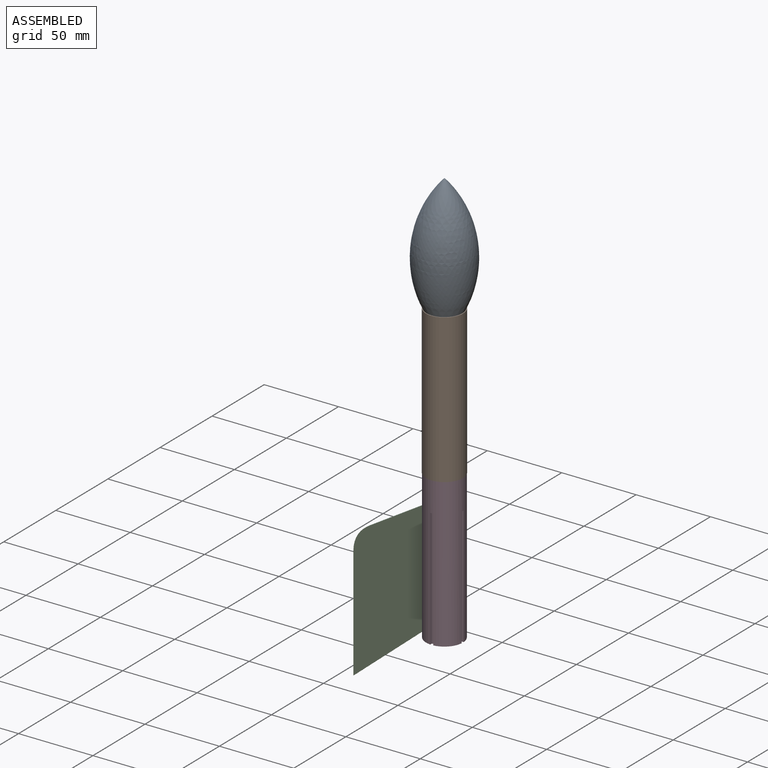
[diagram: assembled view]
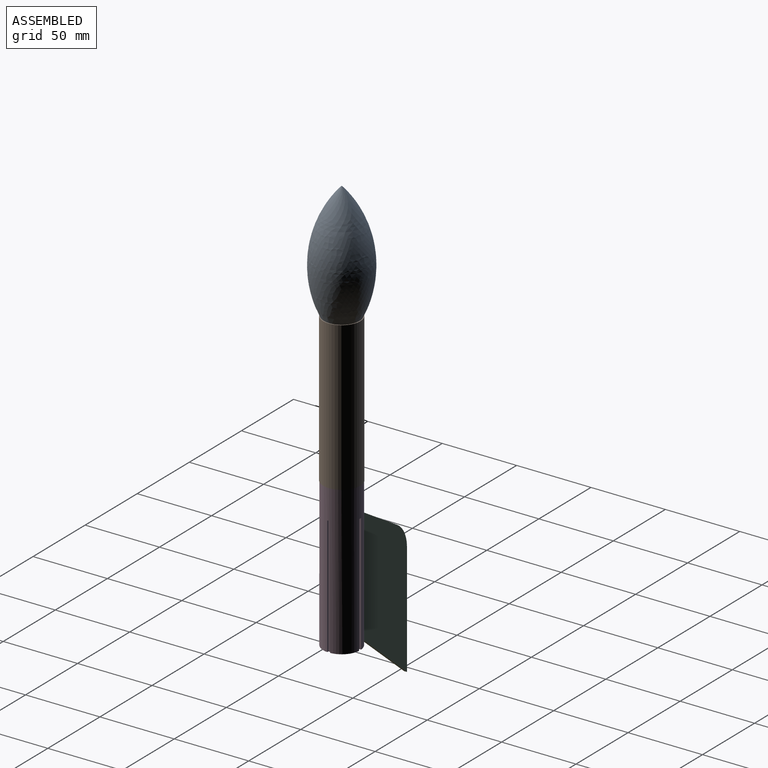
[diagram: assembled view, second angle]
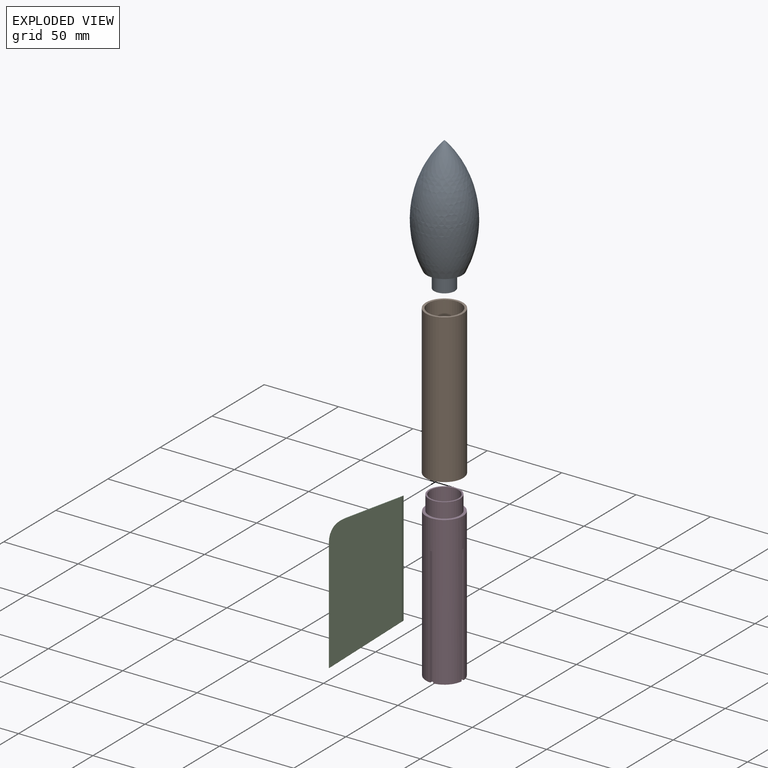
[diagram: exploded view]
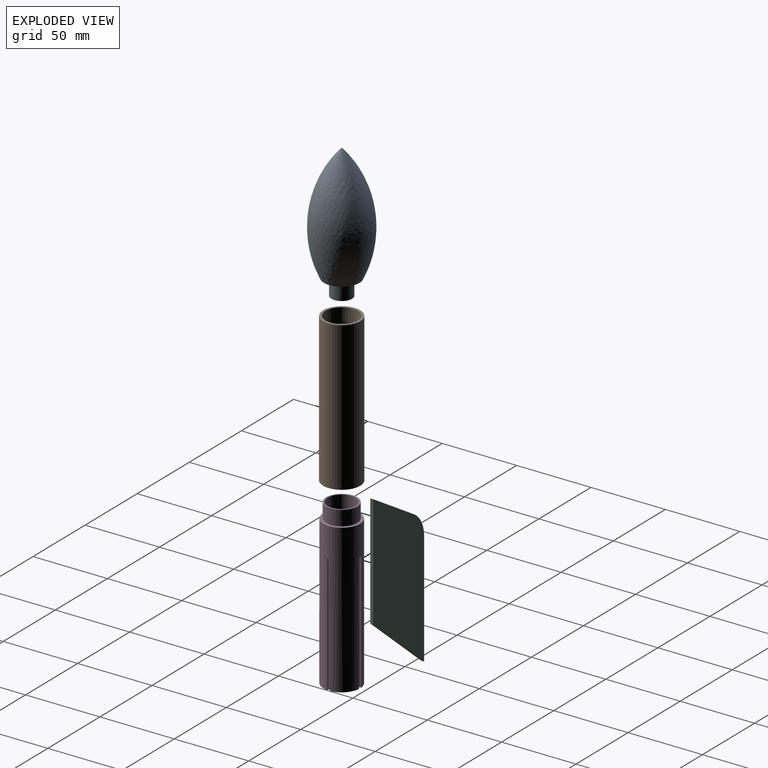
[diagram: exploded view, second angle]
ASSEMBLY  parts=4 mates=3
PART A: 7 faces, bbox 38.2x38.2x90 mm
  f0: cylinder r=5mm len=13mm, axis (0,0,-1), area 408.4mm2, adj f1,f6
  f1: plane 14x14mm, normal (0,0,-1), area 75.4mm2, adj f0,f2
  f2: cylinder r=7mm len=14mm, axis (0,0,-1), area 483.8mm2, adj f1,f3
  f3: plane 24x24mm, normal (0,0,-1), area 298.5mm2, adj f2,f4
  f4: revolved ~79x38.2mm, area 7555mm2, adj f3
  f5: revolved ~74.03x34.2mm, area 6303.7mm2, adj f6
  f6: plane 21.47x21.47mm, normal (0,0,1), area 283.6mm2, adj f0,f5
PART B: 6 faces, bbox 25x25x100 mm
  f0: cylinder r=12.5mm len=100mm, axis (0,0,-1), area 7854mm2, adj f1,f2
  f1: plane 25x25mm, normal (0,0,1), area 110.7mm2, adj f0,f5
  f2: plane 25x25mm, normal (0,0,-1), area 207.3mm2, adj f0,f3
  f3: cylinder r=9.5mm len=90mm, axis (0,0,-1), area 5372.1mm2, adj f2,f4
  f4: plane 22x22mm, normal (0,0,1), area 96.6mm2, adj f3,f5
  f5: cylinder r=11mm len=22mm, axis (0,0,1), area 691.2mm2, adj f1,f4
PART C: 7 faces, bbox 48.9x2x117.3 mm
  f0: plane 76x2mm, normal (1,0,0), area 152mm2, adj f1,f4,f5,f6
  f1: plane 39.39x24.26mm, normal (-0.52,0,0.85), area 92.5mm2, adj f0,f2,f5,f6
  f2: cylinder r=20mm len=17.03mm, axis (0,1,0), area 40.8mm2, adj f1,f3,f5,f6
  f3: plane 76x2mm, normal (-1,0,0), area 152mm2, adj f2,f4,f5,f6
  f4: plane 48.9x41.29mm, normal (0.65,0,-0.76), area 128mm2, adj f0,f3,f5,f6
  f5: plane 117.29x48.9mm, normal (0,-1,0), area 3970mm2, adj f0,f1,f2,f3,f4
  f6: plane 117.29x48.9mm, normal (0,1,0), area 3970mm2, adj f0,f1,f2,f3,f4
PART D: 24 faces, bbox 24.7x24.7x110 mm
  f0: cylinder r=12.35mm len=100mm, axis (0,0,-1), area 7118.3mm2, adj f1,f3,f8,f9,f10,f12,f13,f15
  f1: plane 24.65x24.63mm, normal (0,0,-1), area 156.1mm2, adj f0,f6,f9,f10,f11,f13,f14,f15
  f2: cylinder r=9.5mm len=47.04mm, axis (0,0,-1), area 2807.7mm2, adj f5,f7
  f3: plane 24.7x24.7mm, normal (0,0,1), area 132.7mm2, adj f0,f4
  f4: cylinder r=10.5mm len=21mm, axis (0,0,-1), area 661.7mm2, adj f3,f5
  f5: plane 21x21mm, normal (0,0,1), area 62.8mm2, adj f2,f4
  f6: cylinder r=10mm len=62.99mm, axis (0,0,1), area 3957.9mm2, adj f1,f7
  f7: plane 20x20mm, normal (0,0,-1), area 30.6mm2, adj f2,f6
  f8: plane 2x1.61mm, normal (0,0,-1), area 3.2mm2, adj f0,f9,f10,f11
  f9: plane 80.01x1.58mm, normal (1,0,0), area 126.4mm2, adj f0,f1,f8,f11
  f10: plane 80.01x1.57mm, normal (-1,0,0), area 125.2mm2, adj f0,f1,f8,f11
  f11: plane 80.01x2mm, normal (0,-1,0), area 160mm2, adj f1,f8,f9,f10
  f12: plane 2x1.18mm, normal (0,0,-1), area 2.3mm2, adj f0,f13,f14,f15
  f13: plane 80.01x1.14mm, normal (1,0,0), area 91.2mm2, adj f0,f1,f12,f14
  f14: plane 80.01x2mm, normal (0,1,0), area 160mm2, adj f1,f12,f13,f15
  f15: plane 80.01x1.14mm, normal (-1,0,0), area 91.4mm2, adj f0,f1,f12,f14
  f16: plane 2x1.18mm, normal (0,0,-1), area 2.3mm2, adj f0,f17,f18,f19
  f17: plane 80.01x1.13mm, normal (0,1,0), area 90mm2, adj f0,f1,f16,f19
  f18: plane 80.01x1.15mm, normal (0,-1,0), area 91.7mm2, adj f0,f1,f16,f19
  f19: plane 80.01x2mm, normal (1,0,0), area 160mm2, adj f1,f16,f17,f18
  f20: plane 2x0.51mm, normal (0,0,-1), area 1mm2, adj f0,f21,f22,f23
  f21: plane 80x0.49mm, normal (0,1,0), area 39.5mm2, adj f0,f1,f20,f22
  f22: plane 80x2mm, normal (-1,0,0), area 160mm2, adj f1,f20,f21,f23
  f23: plane 80x0.44mm, normal (0,-1,0), area 35.1mm2, adj f0,f1,f20,f22
PLACE A t=(-25.5,9.69,180.63)mm
PLACE B t=(-25.5,9.69,91.63)mm
PLACE C t=(-37.34,11.03,11.01)mm
PLACE D t=(-25.5,9.69,-8.37)mm
MATE fastened C.f0 <-> D.f22  axis (1,0,0) through (-37.34,10.03,31.63)mm
MATE fastened A.f0 <-> B.f0  axis (0,0,-1) through (-25.5,9.69,191.63)mm
MATE fastened B.f3 <-> D.f0  axis (0,0,-1) through (-25.5,9.69,91.63)mm
